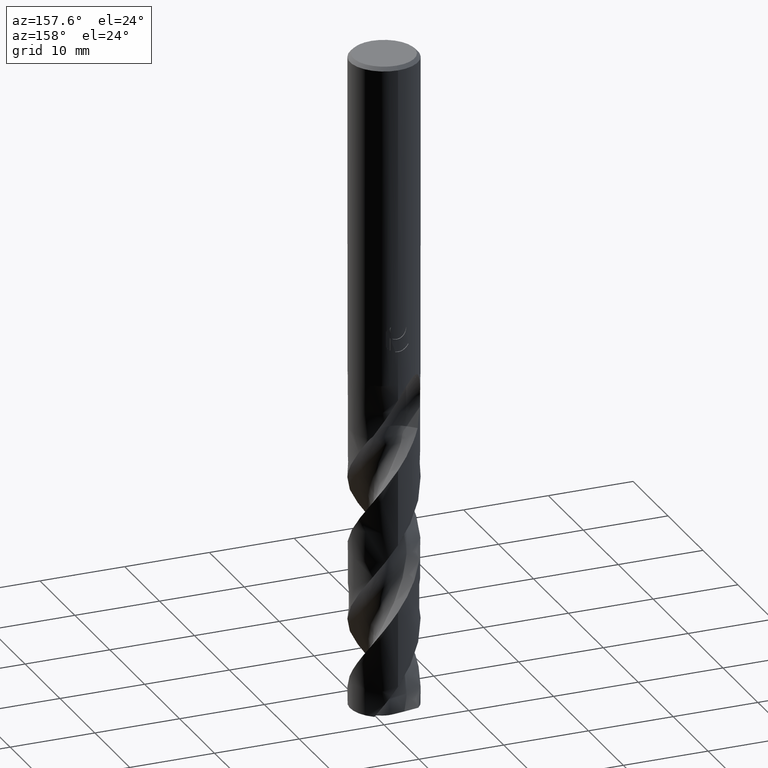
[diagram: clean part render]
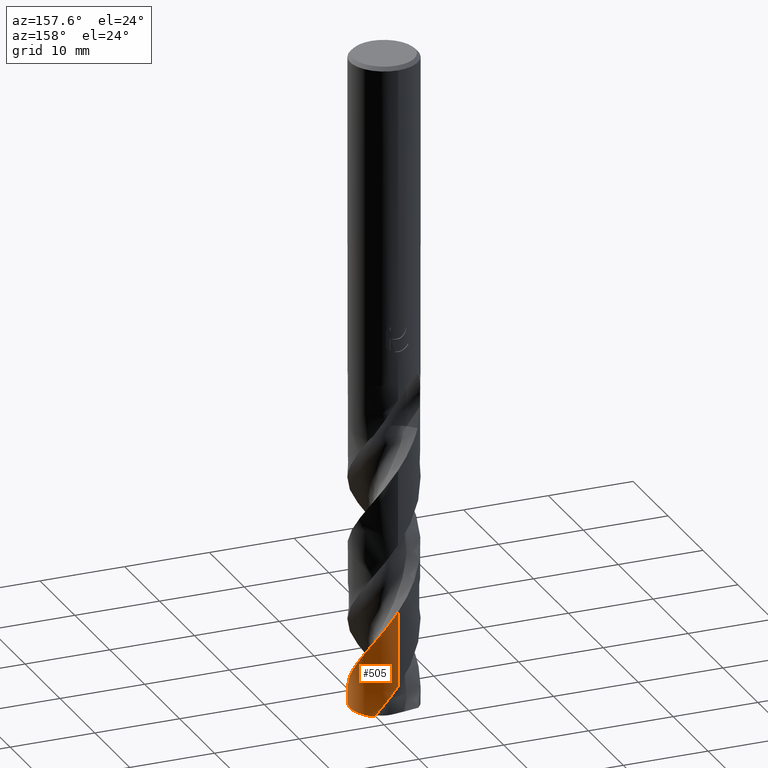
[diagram: same view with one face highlighted and labeled with its STEP entity id]
A machine part, auxiliary view. The second image highlights one B-rep face of the part: STEP entity #505.
In plain terms, the highlighted conical surface has half-angle 0 deg.
Its self-contained STEP definition (entity closure, byte-faithful):
#277=VERTEX_POINT('',#738);
#299=EDGE_CURVE('',#325,#399,#761,.T.);
#325=VERTEX_POINT('',#789);
#327=EDGE_CURVE('',#325,#277,#791,.T.);
#399=VERTEX_POINT('',#868);
#505=ADVANCED_FACE('',(#985),#986,.T.);
#585=VERTEX_POINT('',#1073);
#643=EDGE_CURVE('',#585,#399,#1137,.T.);
#687=EDGE_CURVE('',#585,#277,#1185,.T.);
#738=CARTESIAN_POINT('',(-8.10109799989524E-012,3.99999106807004,-74.0120660422402));
#761=CIRCLE('',#1410,4.0);
#789=CARTESIAN_POINT('',(2.44003030410641,3.16958232501419,-77.5441190629352));
#791=B_SPLINE_CURVE_WITH_KNOTS('',3,(#1472,#1473,#1474,#1475,#1476,#1477,#1478,#1479,#1480,#1481,#1482,#1483,#1484,#1485,#1486,#1487,#1488,#1489,#1490,#1491,#1492,#1493,#1494,#1495,#1496,#1497,#1498,#1499,#1500,#1501,#1502,#1503,#1504,#1505,#1506,#1507,#1508,#1509,#1510,#1511,#1512,#1513,#1514,#1515,#1516,#1517,#1518,#1519,#1520,#1521,#1522,#1523,#1524,#1525,#1526,#1527,#1528,#1529,#1530,#1531,#1532,#1533,#1534,#1535,#1536,#1537,#1538,#1539,#1540,#1541,#1542,#1543,#1544,#1545,#1546,#1547,#1548,#1549,#1550,#1551,#1552,#1553,#1554,#1555),.UNSPECIFIED.,.F.,.F.,(4,2,2,2,2,2,2,2,2,2,2,2,2,2,2,2,2,2,2,2,2,2,2,2,2,2,2,2,2,2,2,2,2,2,2,2,2,2,2,2,2,4),(0.0,0.466993071982984,1.56085903903604,3.07977783486032,4.65076815292183,5.67854188137602,7.44799171581827,8.48582976946521,9.3576793936837,11.5467537770352,12.1132031347875,14.4175220290737,14.6881141927173,16.8538458504184,17.7613100821273,19.6975171289141,20.7041081538005,22.4273696388923,23.4136111947088,25.0052843770841,25.9207089004989,27.7638046469278,28.6267141219373,30.8060161234016,31.1358816137681,33.2518537489696,34.3411333849285,34.7870307949766,35.2058606300186,36.7675805873647,37.7699387377938,37.8822435857834,39.9545110558685,40.987146583205,41.4979330878894,41.7490347595393,42.2598285027539,42.5771188161733,42.8874961530524,43.3273985915154,44.2854962409296,45.2155568114932),.UNSPECIFIED.);
#868=CARTESIAN_POINT('',(2.95090446112371,-2.70040050017034,-77.5441190629352));
#985=FACE_OUTER_BOUND('',#3194,.T.);
#986=CONICAL_SURFACE('',#3195,3.99995,2.52882103254965E-006);
#1073=CARTESIAN_POINT('',(1.88511589875628E-014,3.99996854104961,-65.1039542681433));
#1137=B_SPLINE_CURVE_WITH_KNOTS('',3,(#4174,#4175,#4176,#4177,#4178,#4179,#4180,#4181,#4182,#4183,#4184,#4185,#4186,#4187,#4188,#4189,#4190,#4191,#4192,#4193,#4194,#4195,#4196,#4197,#4198,#4199,#4200,#4201,#4202,#4203,#4204,#4205,#4206,#4207,#4208,#4209,#4210,#4211,#4212,#4213,#4214,#4215,#4216,#4217,#4218,#4219,#4220,#4221,#4222,#4223,#4224,#4225,#4226,#4227,#4228,#4229,#4230,#4231,#4232,#4233,#4234,#4235,#4236,#4237,#4238,#4239,#4240,#4241,#4242,#4243,#4244,#4245,#4246,#4247,#4248,#4249,#4250,#4251,#4252,#4253,#4254,#4255,#4256,#4257,#4258,#4259,#4260,#4261,#4262,#4263,#4264,#4265,#4266,#4267,#4268,#4269,#4270,#4271),.UNSPECIFIED.,.F.,.F.,(4,2,2,2,2,2,2,2,2,2,2,2,2,2,2,2,2,2,2,2,2,2,2,2,2,2,2,2,2,2,2,2,2,2,2,2,2,2,2,2,2,2,2,2,2,2,2,2,4),(0.0,0.161558830081335,0.257574269643966,0.314032149016723,0.750439546208745,0.903068907682266,1.00078224702894,1.09256669001295,1.2156032268748,1.28829488469364,1.48824751057431,1.95261553014319,2.28666460100783,2.65204897678988,2.87296991204117,3.93394515330963,4.17820283635831,6.15037383693625,6.6909060508904,6.82440768317101,7.89897282879125,8.42998975985137,10.2811263383581,11.3955244339315,12.4640562243543,14.6228414463646,15.7025809307954,16.8170436110275,17.8868917351258,20.0419306894408,21.1220585518272,22.2364085691557,23.3070265246532,25.4590433784207,26.5395671837374,27.6538206117565,28.7251722500813,30.8741325461361,31.9550019647146,33.0690945420763,34.0868271815845,34.9875031285569,35.0775742492108,37.6732591030084,37.7849758336061,39.5344578915102,39.9724192966905,40.6296306219004,41.2866180073665),.UNSPECIFIED.);
#1185=LINE('',#5119,#5120);
#1410=AXIS2_PLACEMENT_3D('',#5168,#5169,#5170);
#1472=CARTESIAN_POINT('',(2.44003030410642,3.16958232501418,-77.5441190629352));
#1473=CARTESIAN_POINT('',(2.36653943268091,3.22615718894336,-77.4190999894674));
#1474=CARTESIAN_POINT('',(2.29109682032775,3.28016388602875,-77.294211530186));
#1475=CARTESIAN_POINT('',(2.03286758432926,3.45176005744725,-76.8764024705374));
#1476=CARTESIAN_POINT('',(1.84218511989279,3.55721865889583,-76.5828194828041));
#1477=CARTESIAN_POINT('',(1.36772985320517,3.77104903906614,-75.8838686596013));
#1478=CARTESIAN_POINT('',(1.07882379903797,3.86360092024951,-75.4812748628182));
#1479=CARTESIAN_POINT('',(0.475974508455059,3.98385147882473,-74.6544280576781));
#1480=CARTESIAN_POINT('',(0.16324514825891,4.0089023470591,-74.2313463232286));
#1481=CARTESIAN_POINT('',(-0.354282335006081,3.98953046778349,-73.5360102328143));
#1482=CARTESIAN_POINT('',(-0.558024768252969,3.96616074497301,-73.2622315756544));
#1483=CARTESIAN_POINT('',(-1.10506786146507,3.86043306155115,-72.513680940758));
#1484=CARTESIAN_POINT('',(-1.44072748641259,3.74815209035344,-72.0377547955574));
#1485=CARTESIAN_POINT('',(-1.94349024519449,3.50221825017652,-71.2867860262629));
#1486=CARTESIAN_POINT('',(-2.12190253291194,3.39707125756511,-71.0103453490774));
#1487=CARTESIAN_POINT('',(-2.43355345344811,3.17927753877042,-70.4991491185064));
#1488=CARTESIAN_POINT('',(-2.56892165474912,3.07088932109225,-70.2646646747019));
#1489=CARTESIAN_POINT('',(-3.01706189101023,2.66185356573003,-69.4457283809775));
#1490=CARTESIAN_POINT('',(-3.28766600907622,2.31931036355021,-68.8716881564467));
#1491=CARTESIAN_POINT('',(-3.55246014036689,1.84185584602715,-68.1351639433429));
#1492=CARTESIAN_POINT('',(-3.60265698071728,1.74162603319266,-67.9832964987377));
#1493=CARTESIAN_POINT('',(-3.83572002178533,1.2228750733886,-67.2158668809708));
#1494=CARTESIAN_POINT('',(-3.94994760586654,0.778045286498813,-66.6132901219902));
#1495=CARTESIAN_POINT('',(-3.99117215297,0.270505669512803,-65.9251446375349));
#1496=CARTESIAN_POINT('',(-3.9944284262054,0.217182070601991,-65.8527725547906));
#1497=CARTESIAN_POINT('',(-4.01414539851168,-0.264176138894769,-65.2015769244417));
#1498=CARTESIAN_POINT('',(-3.96288822052251,-0.692291661451429,-64.6339156071558));
#1499=CARTESIAN_POINT('',(-3.79479368005197,-1.27732928649928,-63.8143639096372));
#1500=CARTESIAN_POINT('',(-3.73367201029141,-1.44626116623889,-63.5711608524221));
#1501=CARTESIAN_POINT('',(-3.50703003480203,-1.96145543465141,-62.8128087517813));
#1502=CARTESIAN_POINT('',(-3.30321218253127,-2.28803830217411,-62.3044949219569));
#1503=CARTESIAN_POINT('',(-2.92771905387588,-2.73272196276274,-61.5199924695031));
#1504=CARTESIAN_POINT('',(-2.78794903426228,-2.8752135544006,-61.2500762454551));
#1505=CARTESIAN_POINT('',(-2.38102193531719,-3.23220715608033,-60.5219283405123));
#1506=CARTESIAN_POINT('',(-2.09648050664805,-3.42356706229299,-60.0677831143043));
#1507=CARTESIAN_POINT('',(-1.61686428832733,-3.66381029312013,-59.3447703434171));
#1508=CARTESIAN_POINT('',(-1.43595880109607,-3.73844272870146,-59.0800752372658));
#1509=CARTESIAN_POINT('',(-0.950000867527216,-3.89831768648211,-58.3918137075474));
#1510=CARTESIAN_POINT('',(-0.639427056874488,-3.96111370106586,-57.9713925397349));
#1511=CARTESIAN_POINT('',(-0.143753567273817,-4.001487093347,-57.3021840300902));
#1512=CARTESIAN_POINT('',(0.037679703989738,-4.00387550362946,-57.0565908735655));
#1513=CARTESIAN_POINT('',(0.583051938744974,-3.9740153671493,-56.3203579210188));
#1514=CARTESIAN_POINT('',(0.942998700346713,-3.90430732227909,-55.8354277875435));
#1515=CARTESIAN_POINT('',(1.4504596028116,-3.73161257891287,-55.1139530284867));
#1516=CARTESIAN_POINT('',(1.60827839773423,-3.66634599223918,-54.8827702761396));
#1517=CARTESIAN_POINT('',(2.14833276103994,-3.40145095274646,-54.0718026563925));
#1518=CARTESIAN_POINT('',(2.501508521641,-3.15069641546566,-53.5022684429568));
#1519=CARTESIAN_POINT('',(2.85413619019857,-2.80314882432006,-52.8333220454601));
#1520=CARTESIAN_POINT('',(2.89928081855078,-2.75642840302588,-52.7452681551129));
#1521=CARTESIAN_POINT('',(3.22577124498828,-2.40164071743821,-52.093426529268));
#1522=CARTESIAN_POINT('',(3.45879297421391,-2.05212287723534,-51.5397182063785));
#1523=CARTESIAN_POINT('',(3.72368026281509,-1.47649379665838,-50.6879400349753));
#1524=CARTESIAN_POINT('',(3.7976669232049,-1.27414277628226,-50.3972469024269));
#1525=CARTESIAN_POINT('',(3.8785169312292,-0.981988379505168,-49.9891957994321));
#1526=CARTESIAN_POINT('',(3.89919558351322,-0.896365564531206,-49.8707838624755));
#1527=CARTESIAN_POINT('',(3.93378840304554,-0.729101071187494,-49.6409831340296));
#1528=CARTESIAN_POINT('',(3.94802369621516,-0.647595491418687,-49.5296116719785));
#1529=CARTESIAN_POINT('',(4.00332769665356,-0.260500347014365,-49.0033207009607));
#1530=CARTESIAN_POINT('',(4.01151994262784,0.0489648332234386,-48.590237107809));
#1531=CARTESIAN_POINT('',(3.9663628021989,0.553728190887833,-47.9091618657639));
#1532=CARTESIAN_POINT('',(3.93412777532192,0.748865195526733,-47.6441416383113));
#1533=CARTESIAN_POINT('',(3.88266013189112,0.96167875493745,-47.3470680676023));
#1534=CARTESIAN_POINT('',(3.87731841297798,0.982993563215043,-47.3172055125023));
#1535=CARTESIAN_POINT('',(3.7696514486105,1.39805321789433,-46.7353240070497));
#1536=CARTESIAN_POINT('',(3.62875317633137,1.69677290835863,-46.3098822620747));
#1537=CARTESIAN_POINT('',(3.4745101638432,1.98467587335522,-45.8756174363592));
#1538=CARTESIAN_POINT('',(3.42024837308774,2.07658083691322,-45.7307755767749));
#1539=CARTESIAN_POINT('',(3.33568810062386,2.20798805154721,-45.5105929745419));
#1540=CARTESIAN_POINT('',(3.30723573986692,2.25034994478393,-45.4373700250908));
#1541=CARTESIAN_POINT('',(3.26422980581527,2.31187458058318,-45.3272327149316));
#1542=CARTESIAN_POINT('',(3.24997848156933,2.33186205535477,-45.2908216180288));
#1543=CARTESIAN_POINT('',(3.20652938290193,2.39164578133582,-45.1798988637216));
#1544=CARTESIAN_POINT('',(3.18837635163631,2.41567797648966,-45.1322330287143));
#1545=CARTESIAN_POINT('',(3.1450956769962,2.47152752654395,-45.0278351592527));
#1546=CARTESIAN_POINT('',(3.12799364334847,2.49314811454382,-44.9882269792918));
#1547=CARTESIAN_POINT('',(3.09302498951843,2.5363936072941,-44.9105378651744));
#1548=CARTESIAN_POINT('',(3.07521256470777,2.55797156117611,-44.87250807243));
#1549=CARTESIAN_POINT('',(3.03079229637261,2.61060643384608,-44.7814115780895));
#1550=CARTESIAN_POINT('',(3.00367682366478,2.64178969154339,-44.7288172552077));
#1551=CARTESIAN_POINT('',(2.91378828058797,2.74183640940452,-44.5639400961496));
#1552=CARTESIAN_POINT('',(2.84709243942995,2.81131806464959,-44.4551656265188));
#1553=CARTESIAN_POINT('',(2.7043358771611,2.94880053549655,-44.2472155662194));
#1554=CARTESIAN_POINT('',(2.62916659537246,3.01623487451069,-44.148669984651));
#1555=CARTESIAN_POINT('',(2.5488328128519,3.08265693111187,-44.053));
#3194=EDGE_LOOP('',(#5409,#5410,#5411,#5412));
#3195=AXIS2_PLACEMENT_3D('',#5413,#5414,#5415);
#4174=CARTESIAN_POINT('',(2.78024947561382,-2.87567997457152,-44.053));
#4175=CARTESIAN_POINT('',(2.75817371482259,-2.89702329872677,-44.0972409630103));
#4176=CARTESIAN_POINT('',(2.73579522850856,-2.91816840513754,-44.141450561316));
#4177=CARTESIAN_POINT('',(2.69953309018408,-2.9516410993602,-44.2118364006002));
#4178=CARTESIAN_POINT('',(2.68590113251538,-2.96405192458793,-44.2380247457677));
#4179=CARTESIAN_POINT('',(2.66403238116934,-2.983685127317,-44.2795732605787));
#4180=CARTESIAN_POINT('',(2.65589200489596,-2.99093369458488,-44.2949393715448));
#4181=CARTESIAN_POINT('',(2.58440652295691,-3.05406353853585,-44.4289820852052));
#4182=CARTESIAN_POINT('',(2.5195458865767,-3.10785724221871,-44.5444066503138));
#4183=CARTESIAN_POINT('',(2.42682523714918,-3.17974512395423,-44.7015181520509));
#4184=CARTESIAN_POINT('',(2.40251596191174,-3.1981545632364,-44.7420436963689));
#4185=CARTESIAN_POINT('',(2.36209749057005,-3.22803626218739,-44.8084810361056));
#4186=CARTESIAN_POINT('',(2.34621073483269,-3.23960201715503,-44.8343624903714));
#4187=CARTESIAN_POINT('',(2.31517134037444,-3.26184964275784,-44.8845375472029));
#4188=CARTESIAN_POINT('',(2.30004806305068,-3.27253148274983,-44.9088073210754));
#4189=CARTESIAN_POINT('',(2.26443716999323,-3.29731446654428,-44.9656079287408));
#4190=CARTESIAN_POINT('',(2.24390290858417,-3.31132291863636,-44.9980952699091));
#4191=CARTESIAN_POINT('',(2.21102340386979,-3.3333067528726,-45.0498133321779));
#4192=CARTESIAN_POINT('',(2.19877265794748,-3.34140048533483,-45.0690178235066));
#4193=CARTESIAN_POINT('',(2.15267909421243,-3.37149030643671,-45.141093090513));
#4194=CARTESIAN_POINT('',(2.11873949885411,-3.39292397301257,-45.1938726499001));
#4195=CARTESIAN_POINT('',(2.00373886724129,-3.46312718442369,-45.3725475043822));
#4196=CARTESIAN_POINT('',(1.9220630768018,-3.50908733869282,-45.4986612851296));
#4197=CARTESIAN_POINT('',(1.77991076559926,-3.58270284335894,-45.7150981764534));
#4198=CARTESIAN_POINT('',(1.71970487506777,-3.61198703472405,-45.8058662503844));
#4199=CARTESIAN_POINT('',(1.59221934572049,-3.6700893673843,-45.9956666720981));
#4200=CARTESIAN_POINT('',(1.52467096689692,-3.69866762827949,-46.0948760621451));
#4201=CARTESIAN_POINT('',(1.41484763836497,-3.74159688371443,-46.2536858445686));
#4202=CARTESIAN_POINT('',(1.37312758292995,-3.75710939683183,-46.3134711764409));
#4203=CARTESIAN_POINT('',(1.1295151620951,-3.84308314748332,-46.6604520270726));
#4204=CARTESIAN_POINT('',(0.922631187480409,-3.89791535833661,-46.9460077476256));
#4205=CARTESIAN_POINT('',(0.664096855489992,-3.94471557548108,-47.2995644223873));
#4206=CARTESIAN_POINT('',(0.615594165492738,-3.95257422476922,-47.3657741116354));
#4207=CARTESIAN_POINT('',(0.174654807093539,-4.01571784049058,-47.9661218153915));
#4208=CARTESIAN_POINT('',(-0.224219267889872,-4.01331266003138,-48.4964642543062));
#4209=CARTESIAN_POINT('',(-0.723878657404707,-3.93538564815051,-49.1766611446798));
#4210=CARTESIAN_POINT('',(-0.830619219956113,-3.91424672027506,-49.3229294011489));
#4211=CARTESIAN_POINT('',(-0.962460868982047,-3.88250219122737,-49.5054256640562));
#4212=CARTESIAN_POINT('',(-0.988509206223059,-3.87595206276159,-49.5415732882532));
#4213=CARTESIAN_POINT('',(-1.22360168776609,-3.81431164850593,-49.8686668833983));
#4214=CARTESIAN_POINT('',(-1.4279826655762,-3.74260562762267,-50.1590982155586));
#4215=CARTESIAN_POINT('',(-1.72327672803808,-3.61125978557911,-50.5936894334951));
#4216=CARTESIAN_POINT('',(-1.81911846656761,-3.56394099464409,-50.7373244985811));
#4217=CARTESIAN_POINT('',(-2.23994929859682,-3.33477926904975,-51.3824422254813));
#4218=CARTESIAN_POINT('',(-2.54073534410586,-3.11177532247997,-51.8816988678607));
#4219=CARTESIAN_POINT('',(-2.96633026666592,-2.69272307612893,-52.6843315813356));
#4220=CARTESIAN_POINT('',(-3.11260427427421,-2.52218758469192,-52.9853643247719));
#4221=CARTESIAN_POINT('',(-3.3694879256393,-2.16615992752559,-53.5766951053328));
#4222=CARTESIAN_POINT('',(-3.48104444673428,-1.98194934745211,-53.865806587361));
#4223=CARTESIAN_POINT('',(-3.7717238314655,-1.40089630037116,-54.7396193327921));
#4224=CARTESIAN_POINT('',(-3.90147357668208,-0.98320768780238,-55.3199586247318));
#4225=CARTESIAN_POINT('',(-3.99156392036031,-0.33790040568694,-56.1971047730126));
#4226=CARTESIAN_POINT('',(-4.0040397699146,-0.120550353288497,-56.4888725531214));
#4227=CARTESIAN_POINT('',(-3.9933403005706,0.321251930134663,-57.082792093972));
#4228=CARTESIAN_POINT('',(-3.96903151863477,0.544637567385575,-57.3838923085283));
#4229=CARTESIAN_POINT('',(-3.88504236870304,0.975887487164191,-57.9756106385096));
#4230=CARTESIAN_POINT('',(-3.82690689283192,1.18355058957005,-58.2650523718779));
#4231=CARTESIAN_POINT('',(-3.60198683503147,1.79264697497041,-59.1382109476189));
#4232=CARTESIAN_POINT('',(-3.38648373388268,2.17241419691394,-59.7177727170173));
#4233=CARTESIAN_POINT('',(-2.97801377548558,2.67923924435044,-60.5940460275897));
#4234=CARTESIAN_POINT('',(-2.82800326463266,2.83714537054221,-60.8859126956235));
#4235=CARTESIAN_POINT('',(-2.49846108502527,3.13173233548702,-61.4799307160372));
#4236=CARTESIAN_POINT('',(-2.31894279399892,3.26686837081091,-61.7810713513256));
#4237=CARTESIAN_POINT('',(-1.946878919106,3.50081889056605,-62.3729883700244));
#4238=CARTESIAN_POINT('',(-1.75551597177285,3.60060206215514,-62.6626243448598));
#4239=CARTESIAN_POINT('',(-1.15779495972973,3.85317977887647,-63.5351816619197));
#4240=CARTESIAN_POINT('',(-0.733981565938138,3.95582075189177,-64.1140896269626));
#4241=CARTESIAN_POINT('',(-0.0853809702599216,4.00496317080986,-64.9896690936282));
#4242=CARTESIAN_POINT('',(0.132510583210868,4.00369397303291,-65.2816336053672));
#4243=CARTESIAN_POINT('',(0.572920514480877,3.96508541046705,-65.8757524593591));
#4244=CARTESIAN_POINT('',(0.794307215507007,3.92671410036085,-66.1769382876186));
#4245=CARTESIAN_POINT('',(1.21967286529169,3.81557644002615,-66.7690427008305));
#4246=CARTESIAN_POINT('',(1.4235483149138,3.74430769491307,-67.0588612090022));
#4247=CARTESIAN_POINT('',(2.01639757670813,3.48155186098606,-67.9307897627795));
#4248=CARTESIAN_POINT('',(2.3808461206971,3.24320846491052,-68.5090186255948));
#4249=CARTESIAN_POINT('',(2.86040858383841,2.80449788181527,-69.383867730984));
#4250=CARTESIAN_POINT('',(3.00873097103046,2.6447656376694,-69.6759127657801));
#4251=CARTESIAN_POINT('',(3.28216796193154,2.29730100841858,-70.2700926872944));
#4252=CARTESIAN_POINT('',(3.4057690136076,2.10969668129529,-70.5712958932913));
#4253=CARTESIAN_POINT('',(3.61084583816792,1.73308237173796,-71.1488420942555));
#4254=CARTESIAN_POINT('',(3.69485157335039,1.54594460418152,-71.4241949322865));
#4255=CARTESIAN_POINT('',(3.82552549870399,1.182426713264,-71.9436427192618));
#4256=CARTESIAN_POINT('',(3.87520256301209,1.00776993742532,-72.1870227979994));
#4257=CARTESIAN_POINT('',(3.91662288801854,0.812583081078308,-72.4552498907009));
#4258=CARTESIAN_POINT('',(3.92026698447911,0.794816503472833,-72.4796324626443));
#4259=CARTESIAN_POINT('',(4.02532687115128,0.264298499137277,-73.2069304361293));
#4260=CARTESIAN_POINT('',(4.02540324499781,-0.263748425264478,-73.9046150169381));
#4261=CARTESIAN_POINT('',(3.91947462474884,-0.798853249176351,-74.6378174321106));
#4262=CARTESIAN_POINT('',(3.9149186627906,-0.820889842467733,-74.6680669095033));
#4263=CARTESIAN_POINT('',(3.83591470635279,-1.18739657210955,-75.1722906837448));
#4264=CARTESIAN_POINT('',(3.71640856778385,-1.52070050582631,-75.6459554729643));
#4265=CARTESIAN_POINT('',(3.51432761489579,-1.91239700975867,-76.2387610446247));
#4266=CARTESIAN_POINT('',(3.4712749231945,-1.98947745088493,-76.3573883980877));
#4267=CARTESIAN_POINT('',(3.3573006958557,-2.17854657901733,-76.6541114577558));
#4268=CARTESIAN_POINT('',(3.28332050303899,-2.288522424865,-76.8319844079709));
#4269=CARTESIAN_POINT('',(3.12476558723038,-2.50067264773999,-77.1881107782663));
#4270=CARTESIAN_POINT('',(3.04028644655675,-2.60272628463773,-77.3660796267275));
#4271=CARTESIAN_POINT('',(2.9509044611237,-2.70040050017033,-77.5441190629351));
#5119=CARTESIAN_POINT('',(-4.89351801431061E-016,3.99995,-57.7720595314676));
#5120=VECTOR('',#5651,1.0);
#5168=CARTESIAN_POINT('',(0.0,0.0,-77.5441190629352));
#5169=DIRECTION('',(0.0,0.0,-1.0));
#5170=DIRECTION('',(0.0,1.0,0.0));
#5409=ORIENTED_EDGE('',*,*,#687,.F.);
#5410=ORIENTED_EDGE('',*,*,#643,.T.);
#5411=ORIENTED_EDGE('',*,*,#299,.F.);
#5412=ORIENTED_EDGE('',*,*,#327,.T.);
#5413=CARTESIAN_POINT('',(0.0,0.0,-57.7720595314676));
#5414=DIRECTION('',(0.0,-0.0,-1.0));
#5415=DIRECTION('',(0.0,1.0,0.0));
#5651=DIRECTION('',(-3.09681030413666E-022,2.52882103254695E-006,-0.999999999996803));